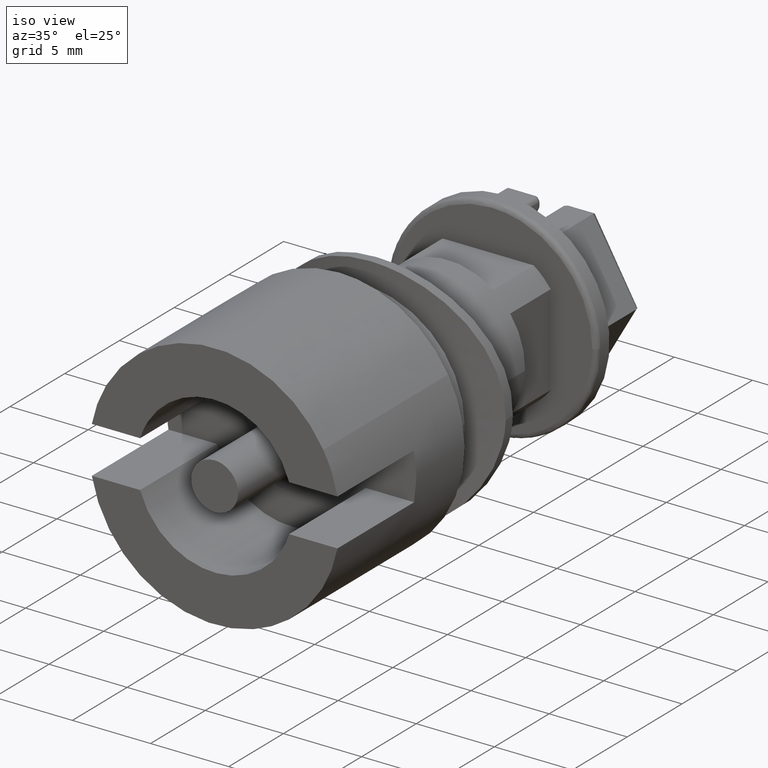
[diagram: clean part render]
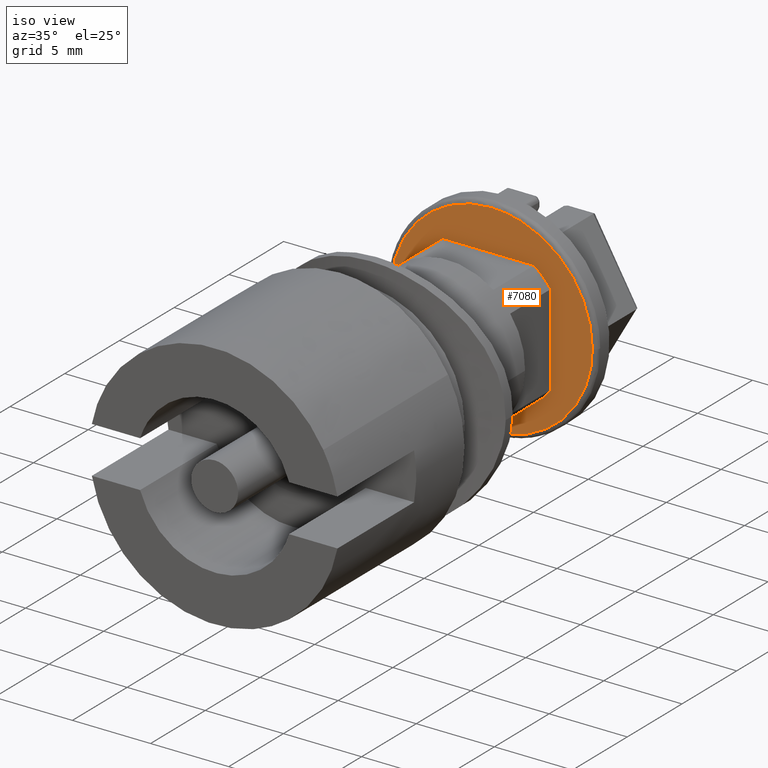
[diagram: same view with one face highlighted and labeled with its STEP entity id]
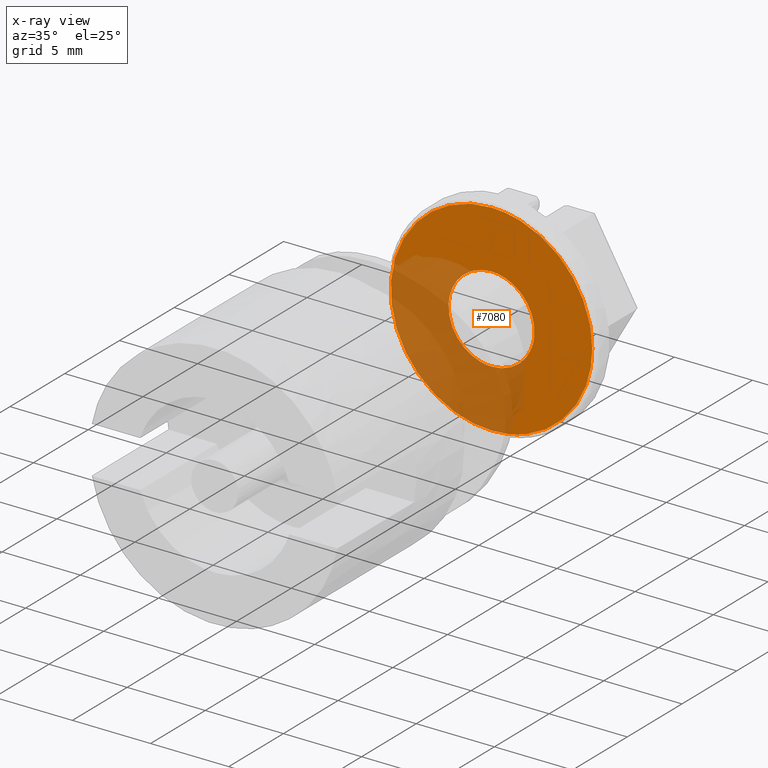
[diagram: x-ray of the same camera — body ghosted, the highlighted face saturated]
A machine part, iso view. The second image highlights one B-rep face of the part: STEP entity #7080.
The next image is the same camera in x-ray: the body ghosted, the highlighted face saturated — about 40% of this face is hidden behind the body in this view.
In plain terms, the highlighted face is a freeform B-spline surface patch.
Its self-contained STEP definition (entity closure, byte-faithful):
#1413=CARTESIAN_POINT('',(2.730776295410229,18.300001059938200,-0.324594140953796));
#1414=VERTEX_POINT('',#1413);
#1415=CARTESIAN_POINT('',(0.0,18.300001059938200,2.750000114609706));
#1416=VERTEX_POINT('',#1415);
#1417=CARTESIAN_POINT('',(2.730776295410229,18.300001059938197,-0.324594140953796));
#1418=CARTESIAN_POINT('',(2.750000098601505,18.300001059938204,-0.162866318891883));
#1419=CARTESIAN_POINT('',(2.750000098601505,18.300001059938200,0.000000016008201));
#1420=CARTESIAN_POINT('',(2.750000098601504,18.300001059938204,2.750000114609706));
#1421=CARTESIAN_POINT('',(0.0,18.300001059938200,2.750000114609706));
#1429=(BOUNDED_CURVE()B_SPLINE_CURVE(2,(#1417,#1418,#1419,#1420,#1421),.UNSPECIFIED.,.F.,.U.)B_SPLINE_CURVE_WITH_KNOTS((3,2,3),(0.229562473513471,0.250000000000000,0.500000000000000),.UNSPECIFIED.)CURVE()GEOMETRIC_REPRESENTATION_ITEM()RATIONAL_B_SPLINE_CURVE((0.956026754183626,0.976055948331101,1.0,0.707106781186547,1.0))REPRESENTATION_ITEM(''));
#1430=EDGE_CURVE('',#1414,#1416,#1429,.T.);
#1432=CARTESIAN_POINT('',(-2.744870987946588,18.300001059937781,0.167880335960599));
#1433=VERTEX_POINT('',#1432);
#1434=CARTESIAN_POINT('',(0.0,18.300001059938200,2.750000114609706));
#1435=CARTESIAN_POINT('',(-2.586944769740510,18.300001059938193,2.750000114609705));
#1436=CARTESIAN_POINT('',(-2.744870987946589,18.300001059937781,0.167880335960599));
#1444=(BOUNDED_CURVE()B_SPLINE_CURVE(2,(#1434,#1435,#1436),.UNSPECIFIED.,.F.,.U.)B_SPLINE_CURVE_WITH_KNOTS((3,3),(0.500000000000000,0.739333161499731),.UNSPECIFIED.)CURVE()GEOMETRIC_REPRESENTATION_ITEM()RATIONAL_B_SPLINE_CURVE((1.0,0.719603759838175,0.976072468720890))REPRESENTATION_ITEM(''));
#1445=EDGE_CURVE('',#1416,#1433,#1444,.T.);
#1512=CARTESIAN_POINT('',(0.0,18.300001059938200,-2.750000082593304));
#1513=VERTEX_POINT('',#1512);
#1514=CARTESIAN_POINT('',(0.0,18.300001059938200,-2.750000082593304));
#1515=CARTESIAN_POINT('',(2.442480033909977,18.300001059938204,-2.750000082593305));
#1516=CARTESIAN_POINT('',(2.730776295410229,18.300001059938197,-0.324594140953796));
#1524=(BOUNDED_CURVE()B_SPLINE_CURVE(2,(#1514,#1515,#1516),.UNSPECIFIED.,.F.,.U.)B_SPLINE_CURVE_WITH_KNOTS((3,3),(0.0,0.229562473513471),.UNSPECIFIED.)CURVE()GEOMETRIC_REPRESENTATION_ITEM()RATIONAL_B_SPLINE_CURVE((1.0,0.731050832855446,0.956026754183626))REPRESENTATION_ITEM(''));
#1525=EDGE_CURVE('',#1513,#1414,#1524,.T.);
#1559=CARTESIAN_POINT('',(-2.744870987946589,18.300001059937781,0.167880335960599));
#1560=CARTESIAN_POINT('',(-2.750000098601504,18.300001059938204,0.084018528754152));
#1561=CARTESIAN_POINT('',(-2.750000098601505,18.300001059938200,0.000000016008201));
#1562=CARTESIAN_POINT('',(-2.750000098601504,18.300001059938204,-2.750000082593304));
#1563=CARTESIAN_POINT('',(0.0,18.300001059938200,-2.750000082593304));
#1571=(BOUNDED_CURVE()B_SPLINE_CURVE(2,(#1559,#1560,#1561,#1562,#1563),.UNSPECIFIED.,.F.,.U.)B_SPLINE_CURVE_WITH_KNOTS((3,2,3),(0.739333161499731,0.750000000000000,1.0),.UNSPECIFIED.)CURVE()GEOMETRIC_REPRESENTATION_ITEM()RATIONAL_B_SPLINE_CURVE((0.976072468720890,0.987503021348372,1.0,0.707106781186547,1.0))REPRESENTATION_ITEM(''));
#1572=EDGE_CURVE('',#1433,#1513,#1571,.T.);
#2564=CARTESIAN_POINT('',(0.0,18.300001059938200,-6.450000272583099));
#2565=VERTEX_POINT('',#2564);
#2566=CARTESIAN_POINT('',(2.278797789089342,18.300001059938200,-6.034035485670046));
#2567=VERTEX_POINT('',#2566);
#2568=CARTESIAN_POINT('',(0.0,18.300001059938200,-6.450000272583099));
#2569=CARTESIAN_POINT('',(1.177363365326297,18.300001059938204,-6.450000272583099));
#2570=CARTESIAN_POINT('',(2.278797789089342,18.300001059938193,-6.034035485670046));
#2578=(BOUNDED_CURVE()B_SPLINE_CURVE(2,(#2568,#2569,#2570),.UNSPECIFIED.,.F.,.U.)B_SPLINE_CURVE_WITH_KNOTS((3,3),(0.500000000000000,0.560000000004379),.UNSPECIFIED.)CURVE()GEOMETRIC_REPRESENTATION_ITEM()RATIONAL_B_SPLINE_CURVE((1.0,0.929705627479641,0.893152553771517))REPRESENTATION_ITEM(''));
#2579=EDGE_CURVE('',#2565,#2567,#2578,.T.);
#2581=CARTESIAN_POINT('',(0.0,18.300001059938200,6.450000304599501));
#2582=VERTEX_POINT('',#2581);
#2583=CARTESIAN_POINT('',(0.0,18.300001059938200,6.450000304599501));
#2584=CARTESIAN_POINT('',(-6.450000288591301,18.300001059938200,6.450000304599501));
#2585=CARTESIAN_POINT('',(-6.450000288591300,18.300001059938200,0.000000016008201));
#2586=CARTESIAN_POINT('',(-6.450000288591301,18.300001059938200,-6.450000272583099));
#2587=CARTESIAN_POINT('',(0.0,18.300001059938200,-6.450000272583099));
#2595=(BOUNDED_CURVE()B_SPLINE_CURVE(2,(#2583,#2584,#2585,#2586,#2587),.UNSPECIFIED.,.F.,.U.)B_SPLINE_CURVE_WITH_KNOTS((3,2,3),(0.0,0.250000000000000,0.500000000000000),.UNSPECIFIED.)CURVE()GEOMETRIC_REPRESENTATION_ITEM()RATIONAL_B_SPLINE_CURVE((1.0,0.707106781186548,1.0,0.707106781186548,1.0))REPRESENTATION_ITEM(''));
#2596=EDGE_CURVE('',#2582,#2565,#2595,.T.);
#2598=CARTESIAN_POINT('',(6.450000288654634,18.300001059938200,0.000000016008201));
#2599=VERTEX_POINT('',#2598);
#2600=CARTESIAN_POINT('',(6.450000288654634,18.300001059938200,0.000000016008201));
#2601=CARTESIAN_POINT('',(6.450000288591301,18.300001059938200,6.450000304599501));
#2602=CARTESIAN_POINT('',(0.0,18.300001059938200,6.450000304599501));
#2610=(BOUNDED_CURVE()B_SPLINE_CURVE(2,(#2600,#2601,#2602),.UNSPECIFIED.,.F.,.U.)B_SPLINE_CURVE_WITH_KNOTS((3,3),(0.750000000000000,1.0),.UNSPECIFIED.)CURVE()GEOMETRIC_REPRESENTATION_ITEM()RATIONAL_B_SPLINE_CURVE((1.0,0.707106781186548,1.0))REPRESENTATION_ITEM(''));
#2611=EDGE_CURVE('',#2599,#2582,#2610,.T.);
#2664=CARTESIAN_POINT('',(2.278797789089343,18.300001059938200,-6.034035485670045));
#2665=CARTESIAN_POINT('',(6.450000288591275,18.300001059938197,-4.458750244211649));
#2666=CARTESIAN_POINT('',(6.450000288654634,18.300001059938197,0.000000016008201));
#2674=(BOUNDED_CURVE()B_SPLINE_CURVE(2,(#2664,#2665,#2666),.UNSPECIFIED.,.F.,.U.)B_SPLINE_CURVE_WITH_KNOTS((3,3),(0.560000000004379,0.749999999999999),.UNSPECIFIED.)CURVE()GEOMETRIC_REPRESENTATION_ITEM()RATIONAL_B_SPLINE_CURVE((0.893152553771517,0.777401153706907,0.999999999999998))REPRESENTATION_ITEM(''));
#2675=EDGE_CURVE('',#2567,#2599,#2674,.T.);
#7063=CARTESIAN_POINT('',(-7.094355292422018,18.300001059938200,-7.094355276410666));
#7064=CARTESIAN_POINT('',(-7.094355292422018,18.300001059938200,7.094355654432046));
#7065=CARTESIAN_POINT('',(7.094355638490342,18.300001059938200,-7.094355276410666));
#7066=CARTESIAN_POINT('',(7.094355638490342,18.300001059938200,7.094355654432046));
#7067=B_SPLINE_SURFACE_WITH_KNOTS('',1,1,((#7063,#7065),(#7064,#7066)),.UNSPECIFIED.,.F.,.F.,.U.,(2,2),(2,2),(0.0,14.188710930842710),(0.0,14.188710930912359),.UNSPECIFIED.);
#7068=ORIENTED_EDGE('',*,*,#2596,.T.);
#7069=ORIENTED_EDGE('',*,*,#2579,.T.);
#7070=ORIENTED_EDGE('',*,*,#2675,.T.);
#7071=ORIENTED_EDGE('',*,*,#2611,.T.);
#7072=EDGE_LOOP('',(#7068,#7069,#7070,#7071));
#7073=FACE_OUTER_BOUND('',#7072,.T.);
#7074=ORIENTED_EDGE('',*,*,#1445,.F.);
#7075=ORIENTED_EDGE('',*,*,#1430,.F.);
#7076=ORIENTED_EDGE('',*,*,#1525,.F.);
#7077=ORIENTED_EDGE('',*,*,#1572,.F.);
#7078=EDGE_LOOP('',(#7074,#7075,#7076,#7077));
#7079=FACE_BOUND('',#7078,.T.);
#7080=ADVANCED_FACE('',(#7073,#7079),#7067,.F.);